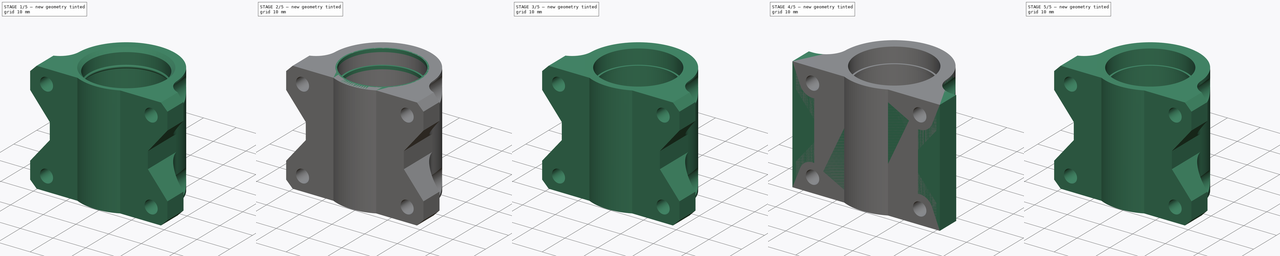
[diagram: build sequence overview — one tinted view per stage of 5, left to right]
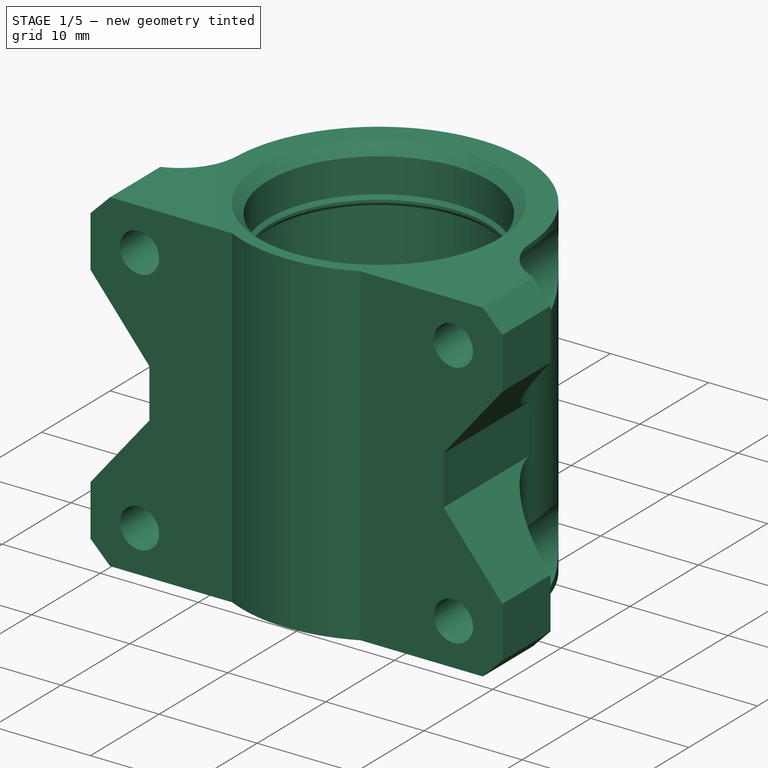
[diagram: stage 1 of 5 — iso view after this stage's code; geometry added in this stage tinted green]
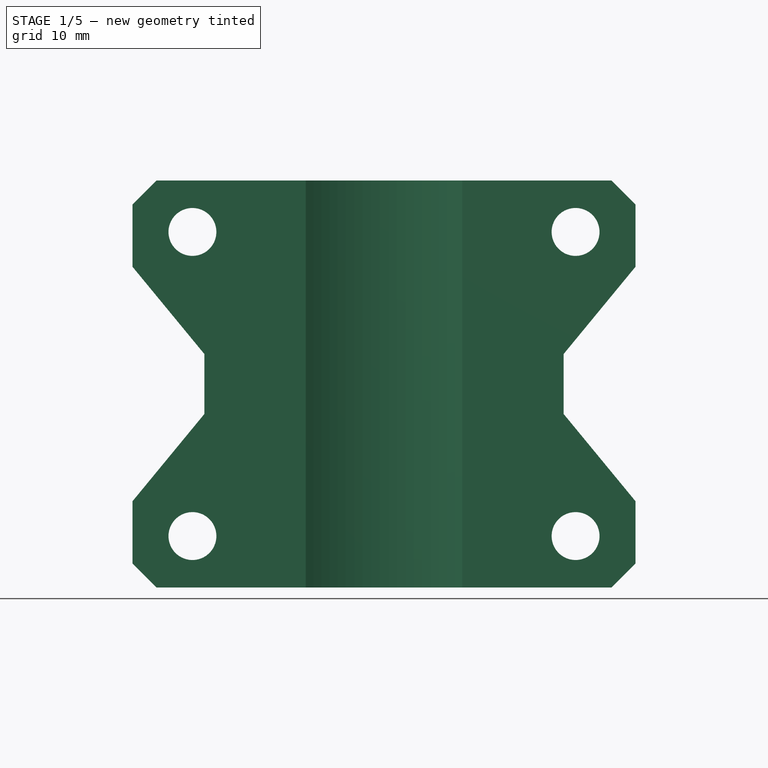
[diagram: stage 1 of 5 — front view after this stage's code; geometry added in this stage tinted green]
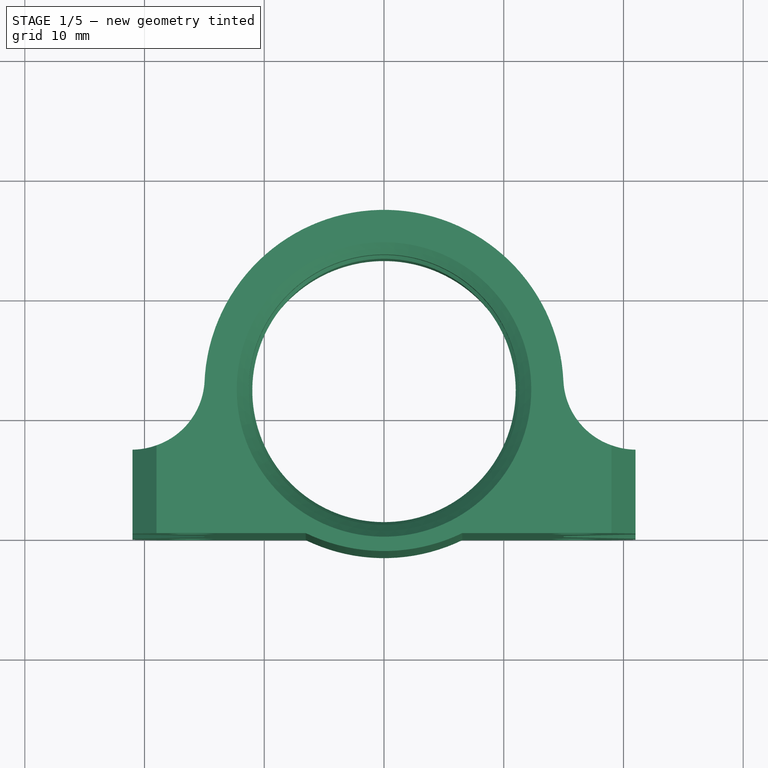
[diagram: stage 1 of 5 — top view after this stage's code; geometry added in this stage tinted green]
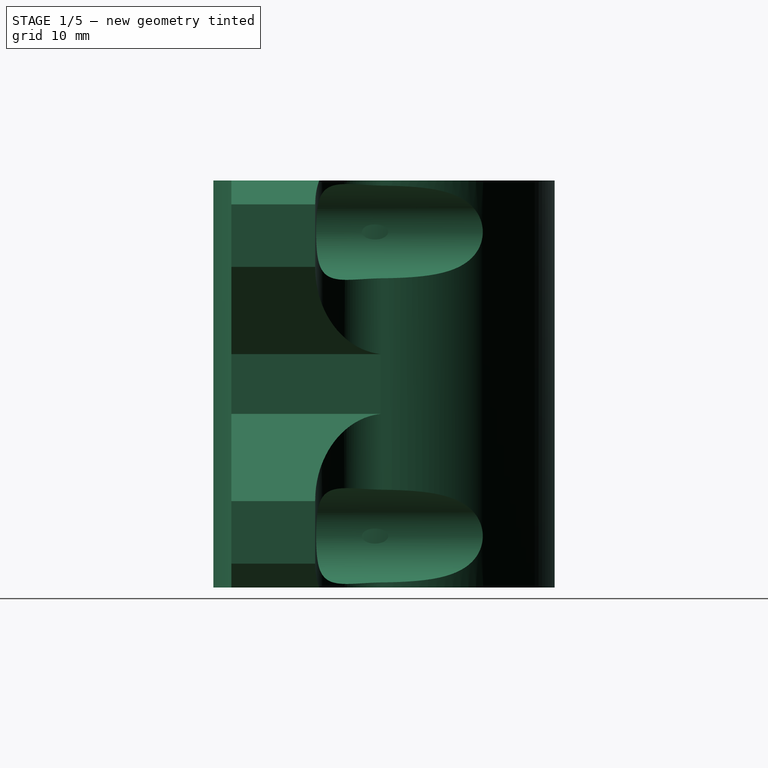
[diagram: stage 1 of 5 — right view after this stage's code; geometry added in this stage tinted green]
FCSTD DOCUMENT  (FreeCAD 0.16R5861 (Git))
Label: single_bearing_holder_12mm_v0.4
License: All rights reserved
LicenseURL: http://en.wikipedia.org/wiki/All_rights_reserved
objects: Sketcher::SketchObject×13, PartDesign::Pocket×7, PartDesign::Pad×6, PartDesign::Chamfer×3, Part::Feature×3, PartDesign::Fillet×2, PartDesign::LinearPattern×1
note: 48 computed .brp shape members not serialized (recipe doc carries the construction recipe); baked Part::Feature solids carry a one-line shape summary decoded from their .brp

FEATURE [Part::Feature] Pocket004002001  label="Pocket004003"
  shape: bbox 42 x 28.5 x 34 mm, 47 faces (baked)
FEATURE [PartDesign::Chamfer] Chamfer002
  Base = -> Pocket004002001 [Edge130,Edge61]
  Size = 1
FEATURE [PartDesign::Fillet] Fillet001
  Base = -> Chamfer002 [Edge133,Edge129]
  Radius = 0.49
FEATURE [Sketcher::SketchObject] Sketch012
  ExternalGeometry = -> [Fillet001]
  Placement = pos=(0,0,0) rot=(1,0,0;3.14159rad)
  Support = -> Fillet001 [Face7]
  sketch-geometry (1):
    g0: Circle CenterX=0 CenterY=-12 CenterZ=0 NormalX=0 NormalY=0 NormalZ=1 Radius=11
  constraints (2):
    c: Coincident(g0,g-3)
    c: Radius(g0) = 11
FEATURE [PartDesign::Pocket] Pocket004002002
  Length = 5
  Sketch = -> Sketch012
  Type = 1
FEATURE [PartDesign::Chamfer] Chamfer003
  Base = -> Pocket004002002 [Edge4,Edge8]
  Size = 0.3
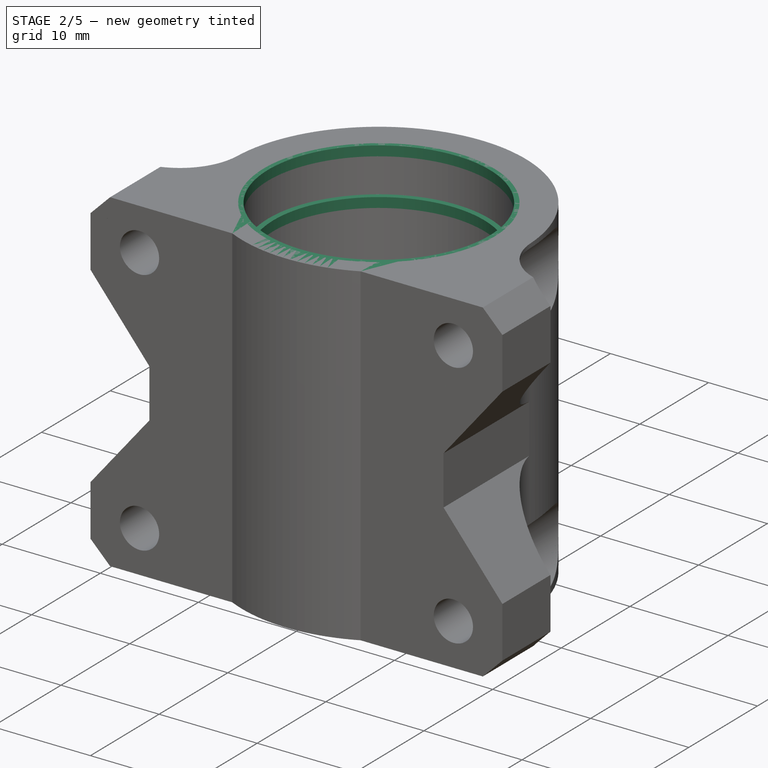
[diagram: stage 2 of 5 — iso view after this stage's code; geometry added in this stage tinted green]
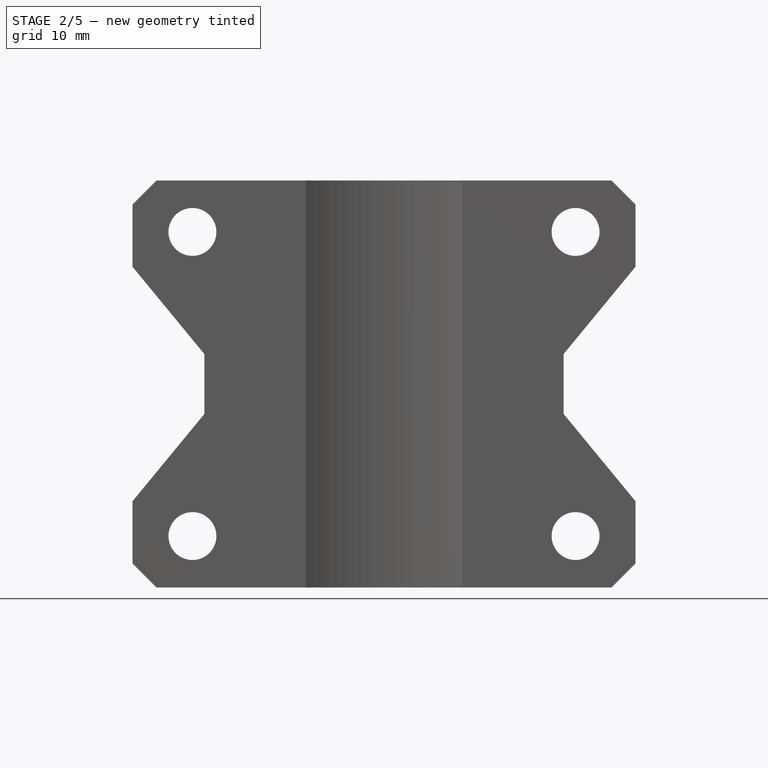
[diagram: stage 2 of 5 — front view after this stage's code; geometry added in this stage tinted green]
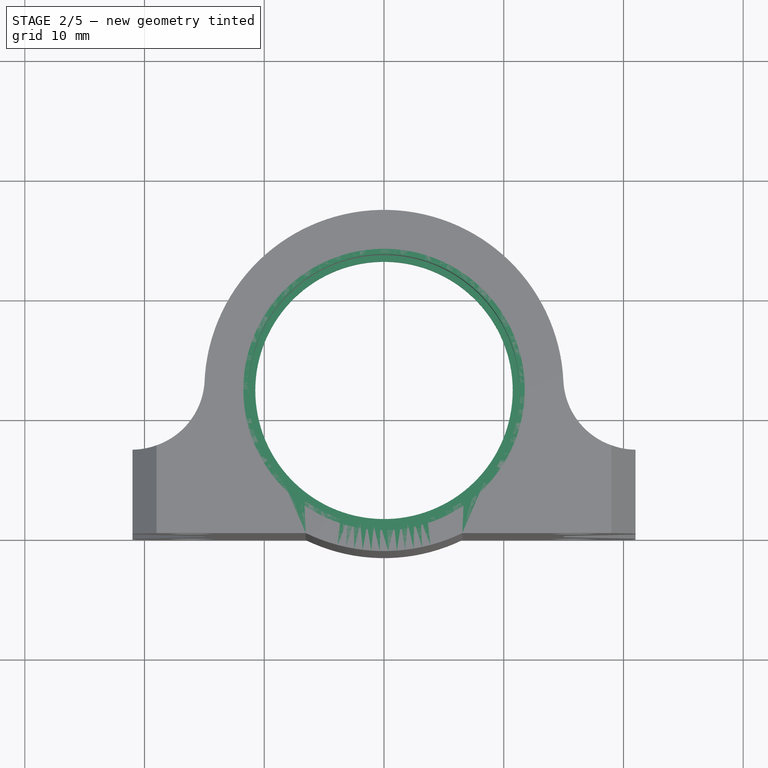
[diagram: stage 2 of 5 — top view after this stage's code; geometry added in this stage tinted green]
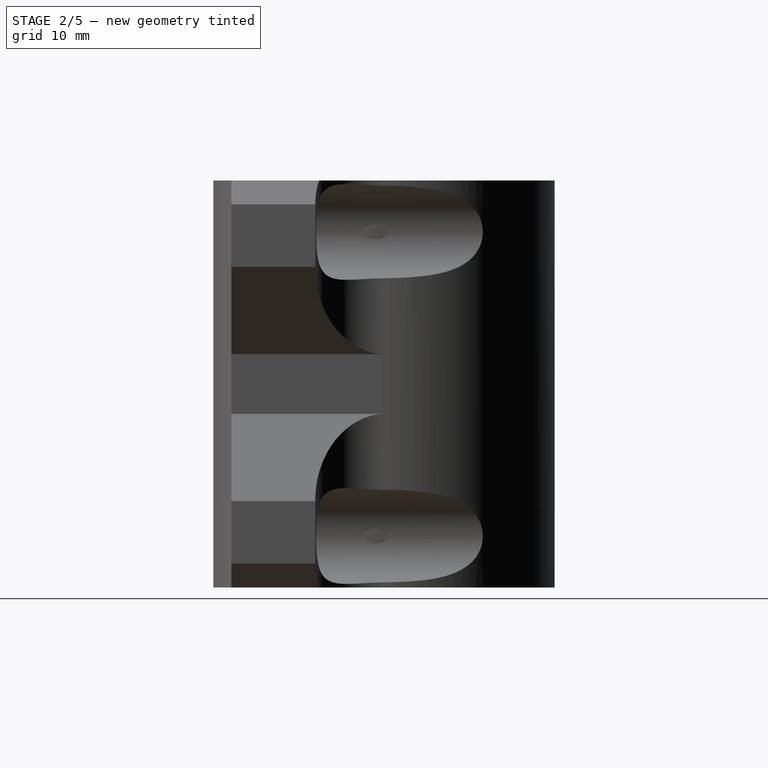
[diagram: stage 2 of 5 — right view after this stage's code; geometry added in this stage tinted green]
FEATURE [Part::Feature] Chamfer001
  shape: bbox 42 x 28.5 x 34 mm, 39 faces (baked)
FEATURE [Sketcher::SketchObject] Sketch006
  ExternalGeometry = -> [Chamfer001]
  Placement = pos=(0,0,0) rot=(1,0,0;1.5708rad)
  Support = -> Chamfer001 [Face38]
  sketch-geometry (4):
    g0: Circle CenterX=-16 CenterY=29.7 CenterZ=0 NormalX=0 NormalY=0 NormalZ=1 Radius=4
    g1: Circle CenterX=16 CenterY=29.7 CenterZ=0 NormalX=0 NormalY=0 NormalZ=1 Radius=4
    g2: Circle CenterX=16 CenterY=4.3 CenterZ=0 NormalX=0 NormalY=0 NormalZ=1 Radius=4
    g3: Circle CenterX=-16 CenterY=4.3 CenterZ=0 NormalX=0 NormalY=0 NormalZ=1 Radius=4
  constraints (8):
    c: Coincident(g0,g-3)
    c: Coincident(g1,g-4)
    c: Coincident(g2,g-5)
    c: Coincident(g3,g-6)
    c: Equal(g3,g0)
    c: Equal(g0,g1)
    c: Equal(g1,g2)
    c: Radius(g1) = 4
FEATURE [PartDesign::Pocket] Pocket003
  Length = 5
  Sketch = -> Sketch006
  Type = 1
FEATURE [Part::Feature] Pocket004001  label="Pocket005"
  shape: bbox 42 x 28.5 x 34 mm, 43 faces (baked)
FEATURE [Sketcher::SketchObject] Sketch010
  ExternalGeometry = -> [Pocket004001]
  Placement = pos=(0,0,34) rot=(0,0,1;0rad)
  Support = -> Pocket004001 [Face36]
  sketch-geometry (2):
    g0: Circle CenterX=0 CenterY=12 CenterZ=0 NormalX=0 NormalY=0 NormalZ=1 Radius=10.75
    g1: Circle CenterX=0 CenterY=12 CenterZ=0 NormalX=0 NormalY=0 NormalZ=1 Radius=11.75
  constraints (4):
    c: Coincident(g0,g-3)
    c: Coincident(g1,g0)
    c: Radius(g1) = 11.75
    c: Radius(g0) = 10.75
FEATURE [PartDesign::Pad] Pad005
  Length = 1
  Length2 = 100
  Reversed = true
  Sketch = -> Sketch010
  Type = 0
FEATURE [PartDesign::LinearPattern] LinearPattern
  Direction = -> Pad005 [Edge14]
  Length = 4.5
  Occurrences = 2
  Originals = -> [Pad005]
  Reversed = true
FEATURE [Sketcher::SketchObject] Sketch011
  ExternalGeometry = -> [LinearPattern]
  Placement = pos=(0,0,34) rot=(0,0,1;0rad)
  Support = -> LinearPattern [Face10]
  sketch-geometry (1):
    g0: Circle CenterX=0 CenterY=12 CenterZ=0 NormalX=0 NormalY=0 NormalZ=1 Radius=11.3
  constraints (2):
    c: Coincident(g0,g-3)
    c: Equal(g-3,g0)
FEATURE [PartDesign::Pocket] Pocket004002
  Length = 3
  Sketch = -> Sketch011
  Type = 0
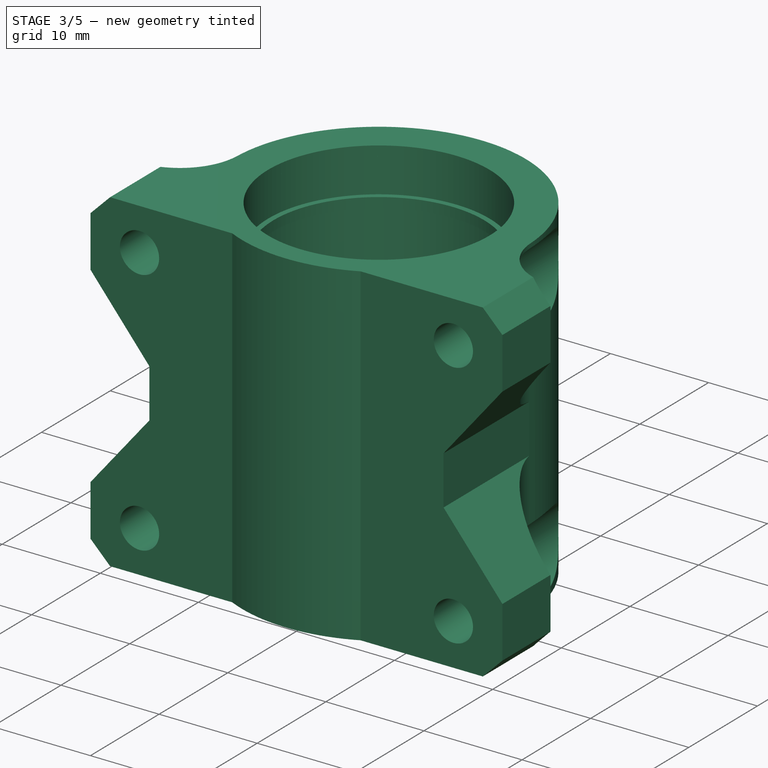
[diagram: stage 3 of 5 — iso view after this stage's code; geometry added in this stage tinted green]
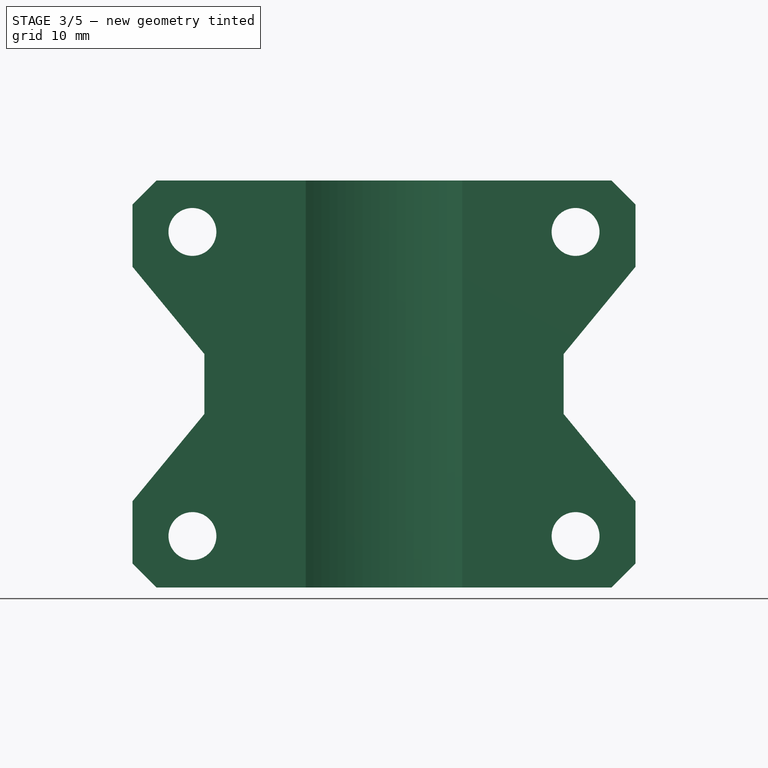
[diagram: stage 3 of 5 — front view after this stage's code; geometry added in this stage tinted green]
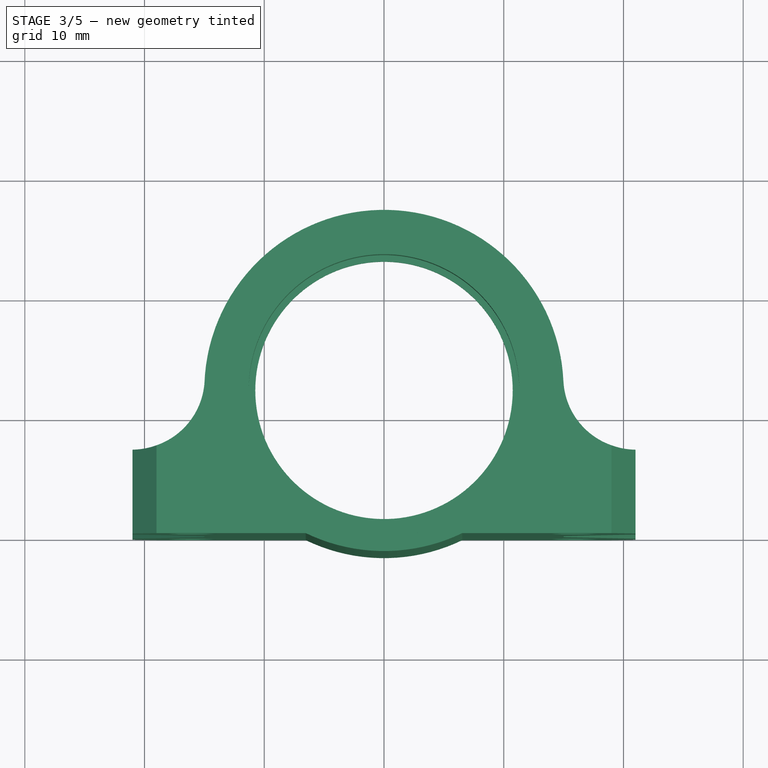
[diagram: stage 3 of 5 — top view after this stage's code; geometry added in this stage tinted green]
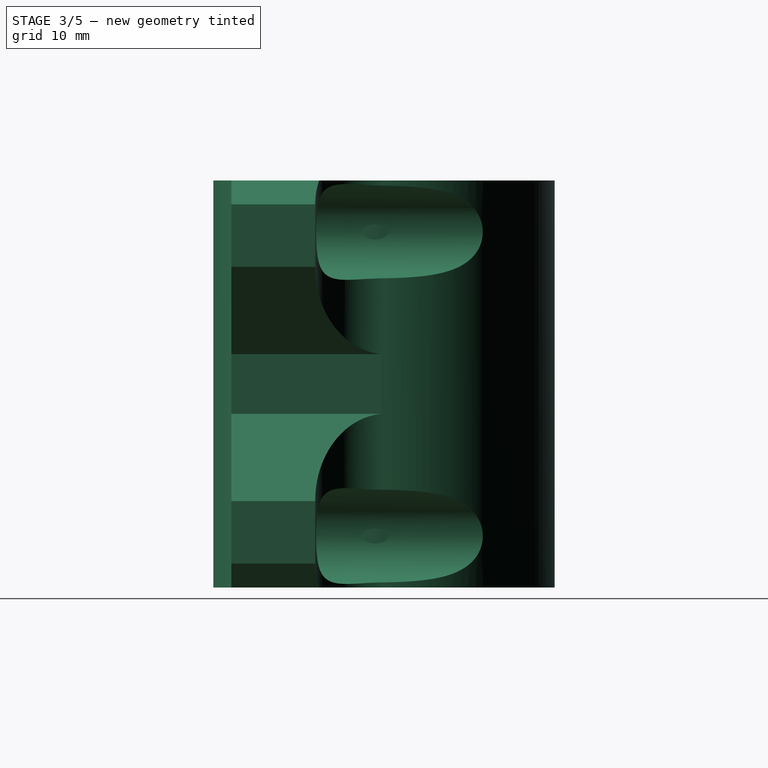
[diagram: stage 3 of 5 — right view after this stage's code; geometry added in this stage tinted green]
FEATURE [Sketcher::SketchObject] Sketch007
  ExternalGeometry = -> [Pocket003]
  Placement = pos=(0,0,0) rot=(1,0,0;1.5708rad)
  Support = -> Pocket003 [Face19]
  sketch-geometry (8):
    g0: Circle CenterX=-16 CenterY=4.3 CenterZ=0 NormalX=0 NormalY=0 NormalZ=1 Radius=4
    g1: Circle CenterX=-16 CenterY=29.7 CenterZ=0 NormalX=0 NormalY=0 NormalZ=1 Radius=4
    g2: Circle CenterX=16 CenterY=29.7 CenterZ=0 NormalX=0 NormalY=0 NormalZ=1 Radius=4
    g3: Circle CenterX=16 CenterY=4.3 CenterZ=0 NormalX=0 NormalY=0 NormalZ=1 Radius=4
    g4: Circle CenterX=-16 CenterY=29.7 CenterZ=0 NormalX=0 NormalY=0 NormalZ=1 Radius=2
    g5: Circle CenterX=16 CenterY=29.7 CenterZ=0 NormalX=0 NormalY=0 NormalZ=1 Radius=2
    g6: Circle CenterX=16 CenterY=4.3 CenterZ=0 NormalX=0 NormalY=0 NormalZ=1 Radius=2
    g7: Circle CenterX=-16 CenterY=4.3 CenterZ=0 NormalX=0 NormalY=0 NormalZ=1 Radius=2
  constraints (16):
    c: Coincident(g0,g-6)
    c: Coincident(g1,g-3)
    c: Coincident(g2,g-4)
    c: Coincident(g3,g-5)
    c: Equal(g3,g-5)
    c: Equal(g-5,g2)
    c: Equal(g2,g1)
    c: Equal(g1,g0)
    c: Coincident(g4,g1)
    c: Coincident(g5,g2)
    c: Coincident(g6,g3)
    c: Coincident(g7,g0)
    c: Equal(g7,g4)
    c: Equal(g4,g5)
    c: Equal(g5,g6)
    c: Radius(g5) = 2
FEATURE [PartDesign::Pad] Pad003
  Length = 7
  Length2 = 100
  Reversed = true
  Sketch = -> Sketch007
  Type = 0
FEATURE [Sketcher::SketchObject] Sketch008
  ExternalGeometry = -> [Pad003]
  Placement = pos=(0,0,0) rot=(1,0,0;3.14159rad)
  Support = -> Pad003 [Face14]
  sketch-geometry (2):
    g0: Circle CenterX=0 CenterY=-12 CenterZ=0 NormalX=0 NormalY=0 NormalZ=1 Radius=12.05
    g1: Circle CenterX=0 CenterY=-12 CenterZ=0 NormalX=0 NormalY=0 NormalZ=1 Radius=11.1
  constraints (4):
    c: Coincident(g0,g-3)
    c: Coincident(g1,g0)
    c: Radius(g0) = 12.05
    c: Radius(g1) = 11.1
FEATURE [PartDesign::Pad] Pad004
  Length = 34
  Length2 = 100
  Reversed = true
  Sketch = -> Sketch008
  Type = 0
FEATURE [Sketcher::SketchObject] Sketch009
  ExternalGeometry = -> [Pad004]
  Placement = pos=(0,0,34) rot=(0,0,1;0rad)
  Support = -> Pad004 [Face10]
  sketch-geometry (1):
    g0: Circle CenterX=0 CenterY=12 CenterZ=0 NormalX=0 NormalY=0 NormalZ=1 Radius=11.3
  constraints (2):
    c: Coincident(g0,g-3)
    c: Radius(g0) = 11.3
FEATURE [PartDesign::Pocket] Pocket004
  Length = 5
  Sketch = -> Sketch009
  Type = 1
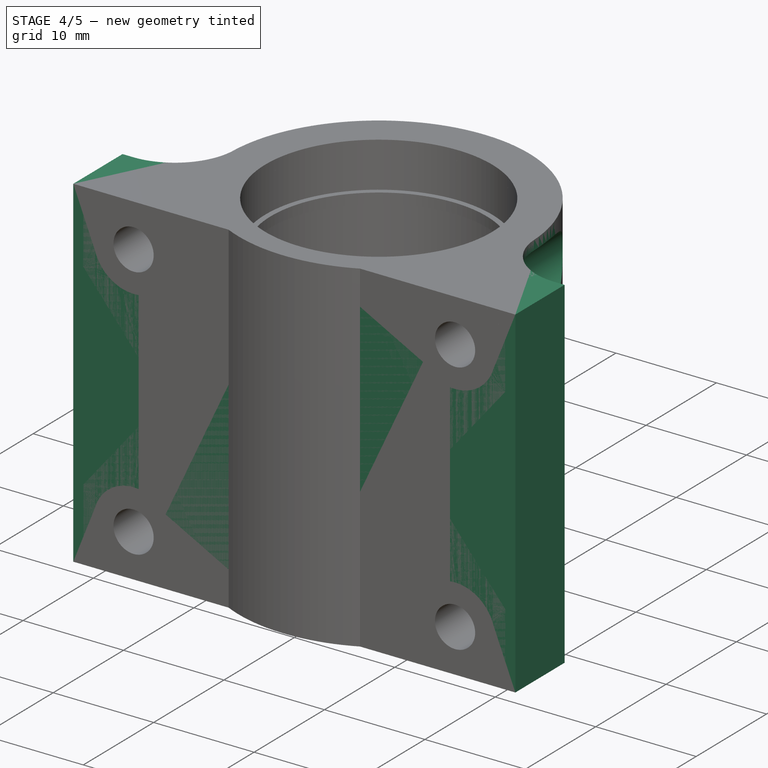
[diagram: stage 4 of 5 — iso view after this stage's code; geometry added in this stage tinted green]
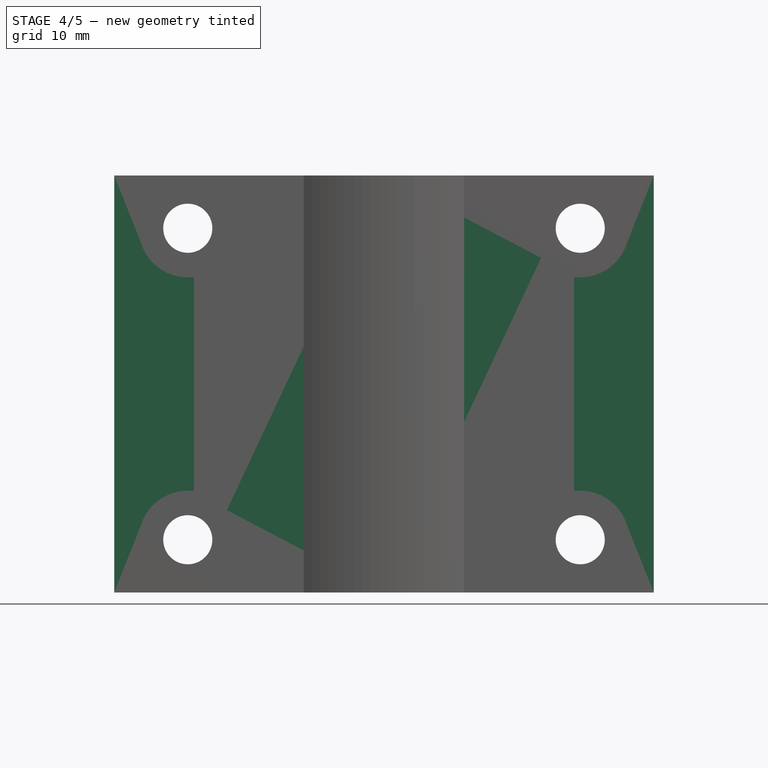
[diagram: stage 4 of 5 — front view after this stage's code; geometry added in this stage tinted green]
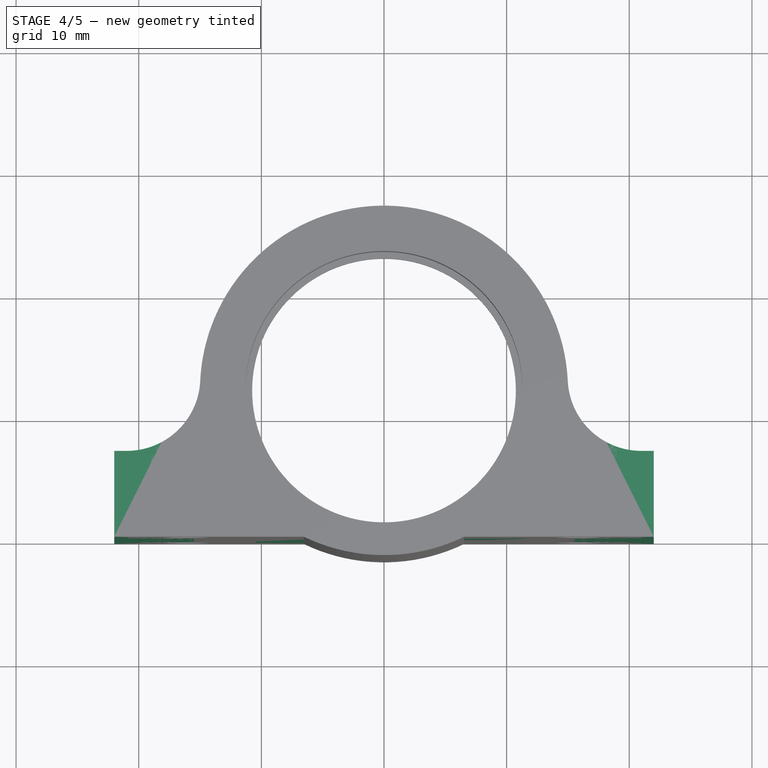
[diagram: stage 4 of 5 — top view after this stage's code; geometry added in this stage tinted green]
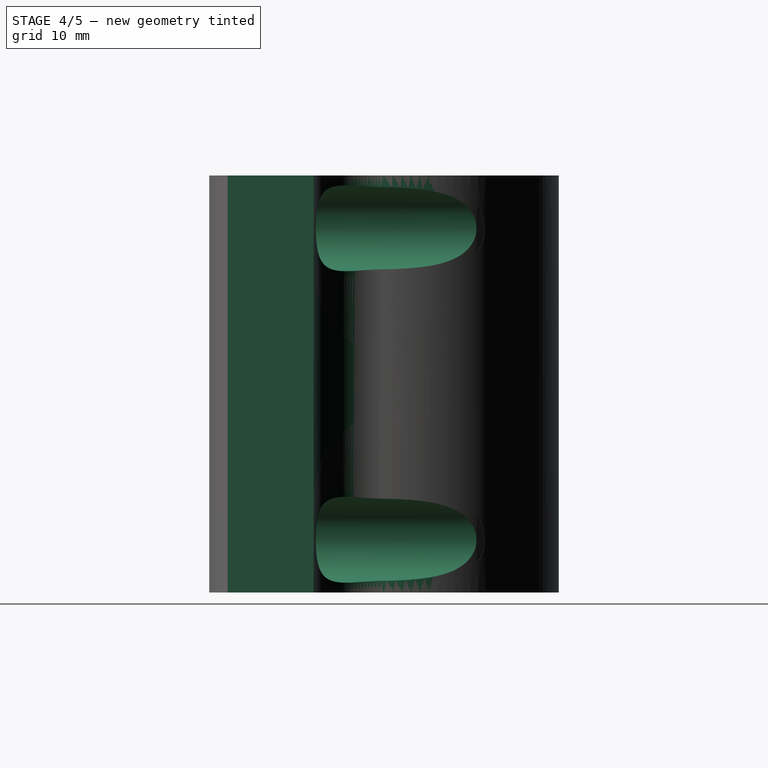
[diagram: stage 4 of 5 — right view after this stage's code; geometry added in this stage tinted green]
FEATURE [Sketcher::SketchObject] Sketch
  sketch-geometry (8):
    g0: Circle CenterX=0 CenterY=12 CenterZ=0 NormalX=0 NormalY=0 NormalZ=1 Radius=11.4
    g1: LineSegment StartX=-22 StartY=0 StartZ=0 EndX=0 EndY=0 EndZ=0
    g2: LineSegment StartX=0 StartY=0 StartZ=0 EndX=22 EndY=0 EndZ=0
    g3: LineSegment StartX=22 StartY=0 StartZ=0 EndX=22 EndY=7 EndZ=0
    g4: LineSegment StartX=22 StartY=7 StartZ=0 EndX=14.1421 EndY=7 EndZ=0
    g5: LineSegment StartX=-22 StartY=0 StartZ=0 EndX=-22 EndY=7 EndZ=0
    g6: LineSegment StartX=-22 StartY=7 StartZ=0 EndX=-14.1421 EndY=7 EndZ=0
    g7: ArcOfCircle CenterX=0 CenterY=12 CenterZ=0 NormalX=0 NormalY=0 NormalZ=1 Radius=15 StartAngle=5.94335 EndAngle=9.76461
  constraints (24):
    c: PointOnObject(g0,g-2)
    c: Radius(g0) = 11.4
    c: DistanceY(g-1,g0) = 12
    c: PointOnObject(g1,g-1)
    c: Coincident(g1,g-1)
    c: Coincident(g1,g2)
    c: PointOnObject(g2,g-1)
    c: Coincident(g2,g3)
    c: Vertical(g3)
    c: Coincident(g3,g4)
    c: Horizontal(g4)
    c: Coincident(g1,g5)
    c: Vertical(g5)
    c: Coincident(g5,g6)
    c: Equal(g5,g3)
    c: Horizontal(g6)
    c: Equal(g6,g4)
    c: Equal(g1,g2)
    c: DistanceX(g2,g1) = -44
    c: DistanceY(g5) = 7
    c: Coincident(g7,g0)
    c: Coincident(g7,g4)
    c: Coincident(g7,g6)
    c: Radius(g7) = 15
FEATURE [PartDesign::Pad] Pad
  Length = 34
  Length2 = 100
  Sketch = -> Sketch
  Type = 0
FEATURE [PartDesign::Fillet] Fillet
  Base = -> Pad [Edge14,Edge11]
  Radius = 6
FEATURE [Sketcher::SketchObject] Sketch001
  ExternalGeometry = -> [Fillet]
  Placement = pos=(0,0,0) rot=(1,0,0;1.5708rad)
  Support = -> Fillet [Face7]
  sketch-geometry (16):
    g0: LineSegment [constr] StartX=-16 StartY=29.7 StartZ=0 EndX=16 EndY=29.7 EndZ=0
    g1: LineSegment [constr] StartX=16 StartY=29.7 StartZ=0 EndX=16 EndY=4.3 EndZ=0
    g2: LineSegment [constr] StartX=16 StartY=4.3 StartZ=0 EndX=-16 EndY=4.3 EndZ=0
    g3: LineSegment [constr] StartX=-16 StartY=4.3 StartZ=0 EndX=-16 EndY=29.7 EndZ=0
    g4: LineSegment [constr] StartX=-16 StartY=4.3 StartZ=0 EndX=-22 EndY=4.3 EndZ=0
    g5: LineSegment [constr] StartX=-22 StartY=4.3 StartZ=0 EndX=-22 EndY=0 EndZ=0
    g6: LineSegment [constr] StartX=-22 StartY=0 StartZ=0 EndX=-16 EndY=0 EndZ=0
    g7: LineSegment [constr] StartX=-16 StartY=0 StartZ=0 EndX=-16 EndY=4.3 EndZ=0
    g8: LineSegment [constr] StartX=16 StartY=29.7 StartZ=0 EndX=22 EndY=29.7 EndZ=0
    g9: LineSegment [constr] StartX=22 StartY=29.7 StartZ=0 EndX=22 EndY=34 EndZ=0
    g10: LineSegment [constr] StartX=22 StartY=34 StartZ=0 EndX=16 EndY=34 EndZ=0
    g11: LineSegment [constr] StartX=16 StartY=34 StartZ=0 EndX=16 EndY=29.7 EndZ=0
    g12: Circle CenterX=-16 CenterY=4.3 CenterZ=0 NormalX=0 NormalY=0 NormalZ=1 Radius=3.5
    g13: Circle CenterX=-16 CenterY=29.7 CenterZ=0 NormalX=0 NormalY=0 NormalZ=1 Radius=3.5
    g14: Circle CenterX=16 CenterY=29.7 CenterZ=0 NormalX=0 NormalY=0 NormalZ=1 Radius=3.5
    g15: Circle CenterX=16 CenterY=4.3 CenterZ=0 NormalX=0 NormalY=0 NormalZ=1 Radius=3.5
  constraints (40):
    c: Coincident(g0,g1)
    c: Coincident(g1,g2)
    c: Coincident(g2,g3)
    c: Coincident(g3,g0)
    c: Horizontal(g0)
    c: Horizontal(g2)
    c: Vertical(g1)
    c: Vertical(g3)
    c: Coincident(g4,g5)
    c: Coincident(g5,g6)
    c: Coincident(g6,g7)
    c: Coincident(g7,g4)
    c: Horizontal(g4)
    c: Horizontal(g6)
    c: Vertical(g5)
    c: Vertical(g7)
    c: Coincident(g4,g2)
    c: Coincident(g5,g-4)
    c: Coincident(g8,g9)
    c: Coincident(g9,g10)
    c: Coincident(g10,g11)
    c: Coincident(g11,g8)
    c: Horizontal(g8)
    c: Horizontal(g10)
    c: Vertical(g9)
    c: Vertical(g11)
    c: Coincident(g8,g0)
    c: Coincident(g9,g-5)
    c: Equal(g11,g7)
    c: Equal(g4,g8)
    c: DistanceY(g1) = -25.4
    c: DistanceX(g0) = 32
    c: Coincident(g12,g2)
    c: Coincident(g13,g0)
    c: Coincident(g14,g0)
    c: Coincident(g15,g1)
    c: Equal(g15,g12)
    c: Equal(g12,g13)
    c: Equal(g13,g14)
    c: Radius(g14) = 3.5
FEATURE [PartDesign::Pocket] Pocket
  Length = 5
  Sketch = -> Sketch001
  Type = 1
FEATURE [Sketcher::SketchObject] Sketch002
  ExternalGeometry = -> [Pocket]
  Placement = pos=(0,0,0) rot=(1,0,0;1.5708rad)
  Support = -> Pocket [Face9]
  sketch-geometry (8):
    g0: Circle CenterX=-16 CenterY=29.7 CenterZ=0 NormalX=0 NormalY=0 NormalZ=1 Radius=2
    g1: Circle CenterX=-16 CenterY=29.7 CenterZ=0 NormalX=0 NormalY=0 NormalZ=1 Radius=4
    g2: Circle CenterX=16 CenterY=29.7 CenterZ=0 NormalX=0 NormalY=0 NormalZ=1 Radius=2
    g3: Circle CenterX=16 CenterY=29.7 CenterZ=0 NormalX=0 NormalY=0 NormalZ=1 Radius=4
    g4: Circle CenterX=-16 CenterY=4.3 CenterZ=0 NormalX=0 NormalY=0 NormalZ=1 Radius=2
    g5: Circle CenterX=-16 CenterY=4.3 CenterZ=0 NormalX=0 NormalY=0 NormalZ=1 Radius=4
    g6: Circle CenterX=16 CenterY=4.3 CenterZ=0 NormalX=0 NormalY=0 NormalZ=1 Radius=2
    g7: Circle CenterX=16 CenterY=4.3 CenterZ=0 NormalX=0 NormalY=0 NormalZ=1 Radius=4
  constraints (16):
    c: Coincident(g0,g-3)
    c: Coincident(g1,g0)
    c: Coincident(g2,g-4)
    c: Coincident(g3,g2)
    c: Coincident(g4,g-6)
    c: Coincident(g5,g4)
    c: Coincident(g6,g-5)
    c: Coincident(g7,g6)
    c: Radius(g1) = 4
    c: Equal(g1,g3)
    c: Equal(g1,g5)
    c: Equal(g1,g7)
    c: Radius(g0) = 2
    c: Equal(g0,g2)
    c: Equal(g0,g6)
    c: Equal(g0,g4)
FEATURE [PartDesign::Pad] Pad001
  Length = 7
  Length2 = 100
  Reversed = true
  Sketch = -> Sketch002
  Type = 0
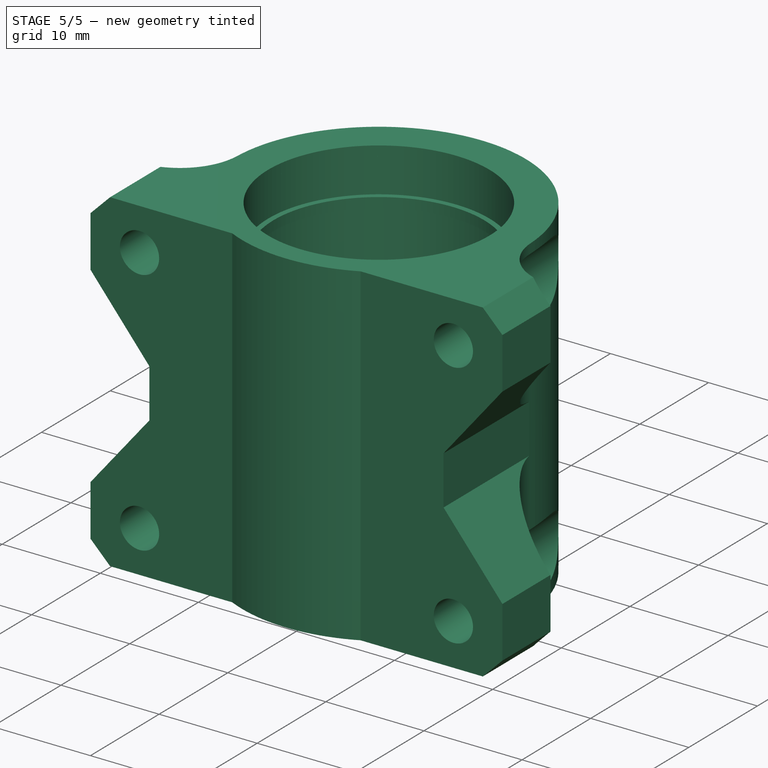
[diagram: stage 5 of 5 — iso view after this stage's code; geometry added in this stage tinted green]
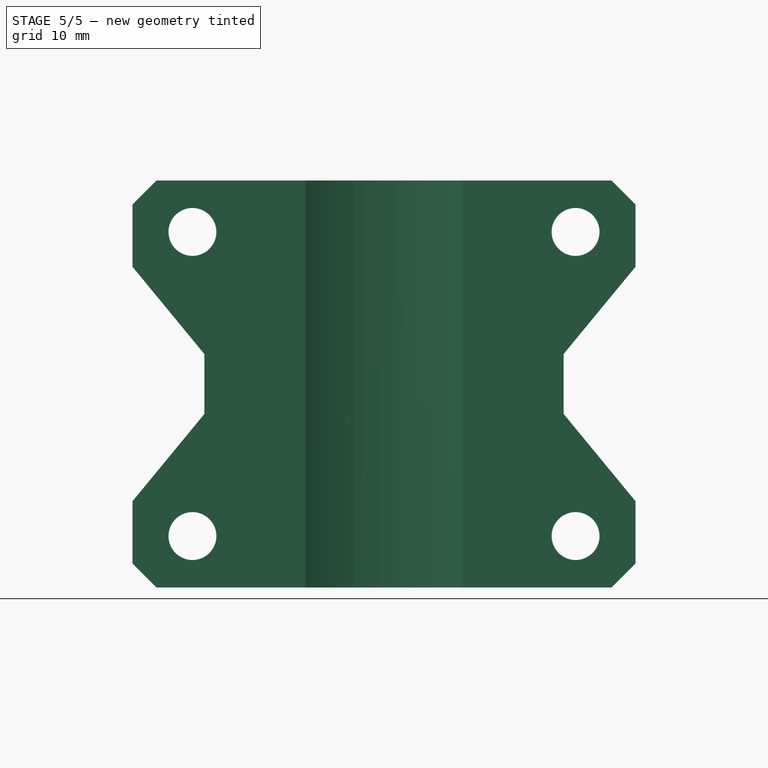
[diagram: stage 5 of 5 — front view after this stage's code; geometry added in this stage tinted green]
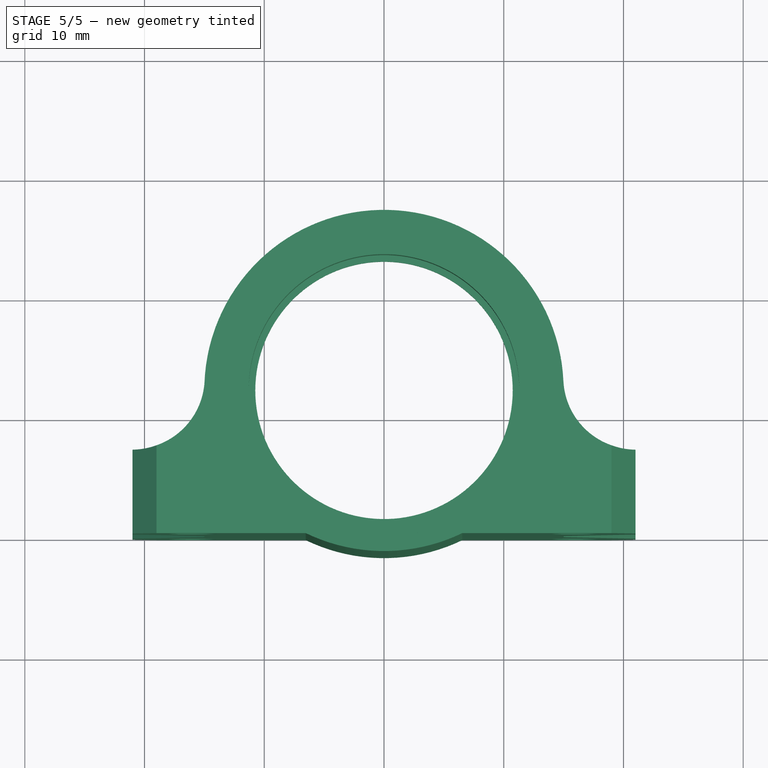
[diagram: stage 5 of 5 — top view after this stage's code; geometry added in this stage tinted green]
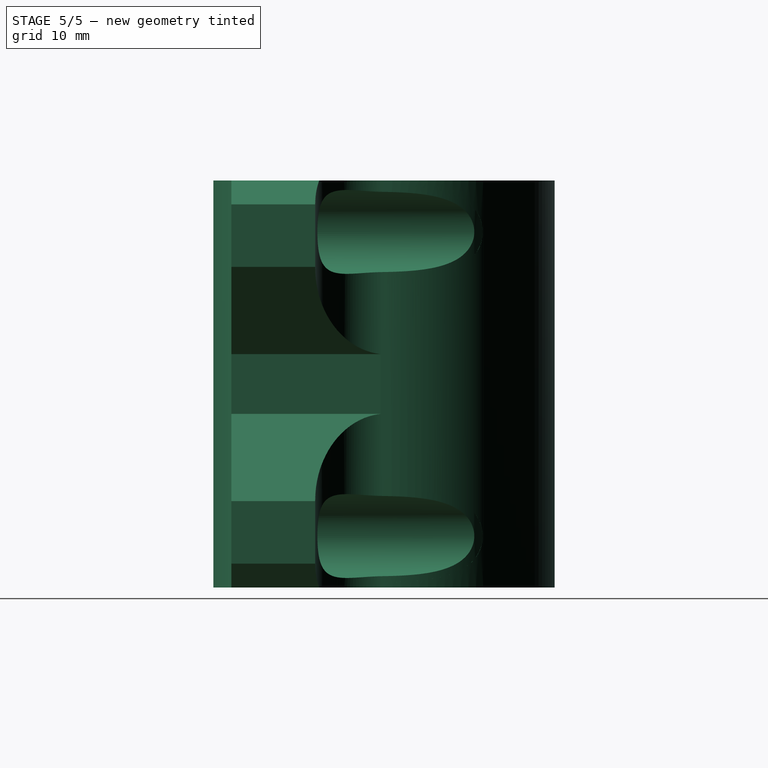
[diagram: stage 5 of 5 — right view after this stage's code; geometry added in this stage tinted green]
FEATURE [Sketcher::SketchObject] Sketch003
  ExternalGeometry = -> [Pad001]
  Placement = pos=(0,0,0) rot=(1,0,0;1.5708rad)
  Support = -> Pad001 [Face7]
  sketch-geometry (8):
    g0: LineSegment StartX=-22 StartY=28 StartZ=0 EndX=-15 EndY=19.5 EndZ=0
    g1: LineSegment StartX=-15 StartY=19.5 StartZ=0 EndX=-15 EndY=14.5 EndZ=0
    g2: LineSegment StartX=-15 StartY=14.5 StartZ=0 EndX=-22 EndY=6 EndZ=0
    g3: LineSegment StartX=-22 StartY=6 StartZ=0 EndX=-22 EndY=28 EndZ=0
    g4: LineSegment StartX=22 StartY=28 StartZ=0 EndX=15 EndY=19.5 EndZ=0
    g5: LineSegment StartX=15 StartY=19.5 StartZ=0 EndX=15 EndY=14.5 EndZ=0
    g6: LineSegment StartX=15 StartY=14.5 StartZ=0 EndX=22 EndY=6 EndZ=0
    g7: LineSegment StartX=22 StartY=6 StartZ=0 EndX=22 EndY=28 EndZ=0
  constraints (24):
    c: PointOnObject(g0,g-3)
    c: Coincident(g0,g1)
    c: Vertical(g1)
    c: Coincident(g1,g2)
    c: PointOnObject(g2,g-3)
    c: Coincident(g2,g3)
    c: Coincident(g3,g0)
    c: PointOnObject(g4,g-4)
    c: Coincident(g4,g5)
    c: Vertical(g5)
    c: Coincident(g5,g6)
    c: PointOnObject(g6,g-4)
    c: Coincident(g6,g7)
    c: Coincident(g7,g4)
    c: Equal(g1,g5)
    c: Equal(g0,g6)
    c: Equal(g6,g4)
    c: Equal(g4,g2)
    c: DistanceX(g0,g0) = -7
    c: DistanceY(g0,g-3) = 6
    c: DistanceY(g2,g-3) = -6
    c: DistanceY(g6,g-4) = -6
    c: DistanceY(g4,g-4) = 6
    c: DistanceY(g5) = -5
FEATURE [PartDesign::Pocket] Pocket001
  Length = 5
  Sketch = -> Sketch003
  Type = 1
FEATURE [Sketcher::SketchObject] Sketch004
  ExternalGeometry = -> [Pocket001]
  Placement = pos=(0,0,0) rot=(1,0,0;3.14159rad)
  Support = -> Pocket001 [Face5]
  sketch-geometry (3):
    g0: ArcOfCircle CenterX=0 CenterY=-13.5 CenterZ=0 NormalX=0 NormalY=0 NormalZ=1 Radius=15 StartAngle=1.11977 EndAngle=2.02182
    g1: LineSegment [constr] StartX=0 StartY=0 StartZ=0 EndX=0 EndY=1.5 EndZ=0
    g2: LineSegment StartX=-6.53835 StartY=0 StartZ=0 EndX=6.53835 EndY=0 EndZ=0
  constraints (10):
    c: PointOnObject(g0,g-1)
    c: PointOnObject(g0,g-1)
    c: Radius(g0) = 15
    c: Coincident(g1,g-1)
    c: PointOnObject(g1,g0)
    c: Vertical(g1)
    c: DistanceY(g1) = 1.5
    c: PointOnObject(g0,g-2)
    c: Coincident(g0,g2)
    c: Coincident(g2,g0)
FEATURE [PartDesign::Pad] Pad002
  Length = 34
  Length2 = 100
  Reversed = true
  Sketch = -> Sketch004
  Type = 0
FEATURE [Sketcher::SketchObject] Sketch005
  ExternalGeometry = -> [Pad002]
  Placement = pos=(0,0,0) rot=(1,0,0;1.5708rad)
  Support = -> Pad002 [Face13]
  sketch-geometry (8):
    g0: LineSegment StartX=-22 StartY=34 StartZ=0 EndX=-21 EndY=34 EndZ=0
    g1: LineSegment StartX=-21 StartY=34 StartZ=0 EndX=-21 EndY=0 EndZ=0
    g2: LineSegment StartX=-21 StartY=0 StartZ=0 EndX=-22 EndY=0 EndZ=0
    g3: LineSegment StartX=-22 StartY=0 StartZ=0 EndX=-22 EndY=34 EndZ=0
    g4: LineSegment StartX=22 StartY=34 StartZ=0 EndX=21 EndY=34 EndZ=0
    g5: LineSegment StartX=21 StartY=34 StartZ=0 EndX=21 EndY=0 EndZ=0
    g6: LineSegment StartX=21 StartY=0 StartZ=0 EndX=22 EndY=0 EndZ=0
    g7: LineSegment StartX=22 StartY=0 StartZ=0 EndX=22 EndY=34 EndZ=0
  constraints (22):
    c: Coincident(g0,g1)
    c: Coincident(g1,g2)
    c: Coincident(g2,g3)
    c: Coincident(g3,g0)
    c: Horizontal(g0)
    c: Horizontal(g2)
    c: Vertical(g1)
    c: Vertical(g3)
    c: Coincident(g0,g-3)
    c: Coincident(g4,g5)
    c: Coincident(g5,g6)
    c: Coincident(g6,g7)
    c: Coincident(g7,g4)
    c: Horizontal(g4)
    c: Horizontal(g6)
    c: Vertical(g5)
    c: Vertical(g7)
    c: Coincident(g4,g-4)
    c: PointOnObject(g5,g-1)
    c: Equal(g2,g6)
    c: Equal(g1,g7)
    c: DistanceX(g0,g0) = -1
FEATURE [PartDesign::Pocket] Pocket002
  Length = 5
  Sketch = -> Sketch005
  Type = 1
FEATURE [PartDesign::Chamfer] Chamfer
  Base = -> Pocket002 [Edge42,Edge47,Edge26,Edge22]
  Size = 2
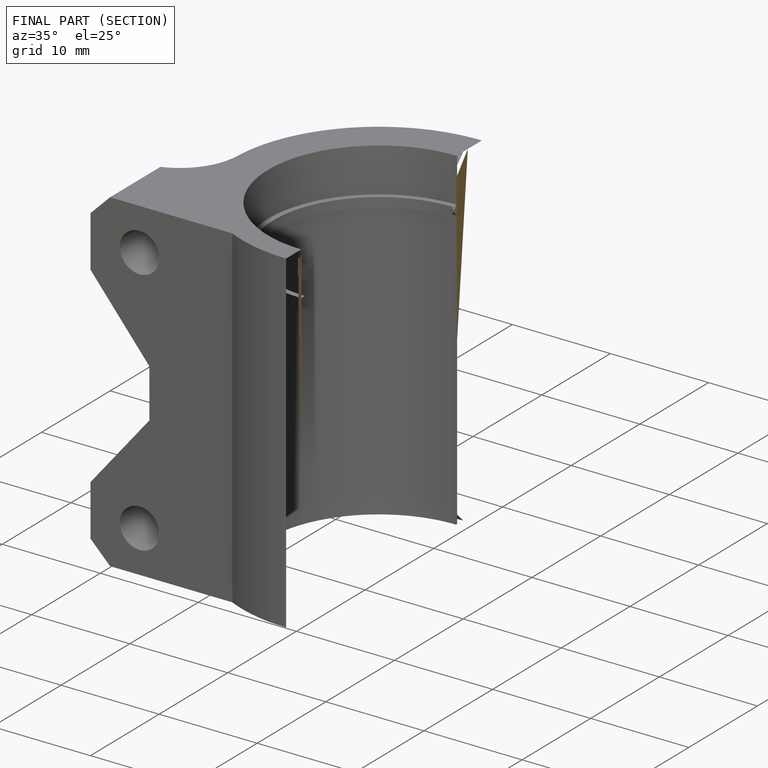
[diagram: finished part — half-section view (interior)]
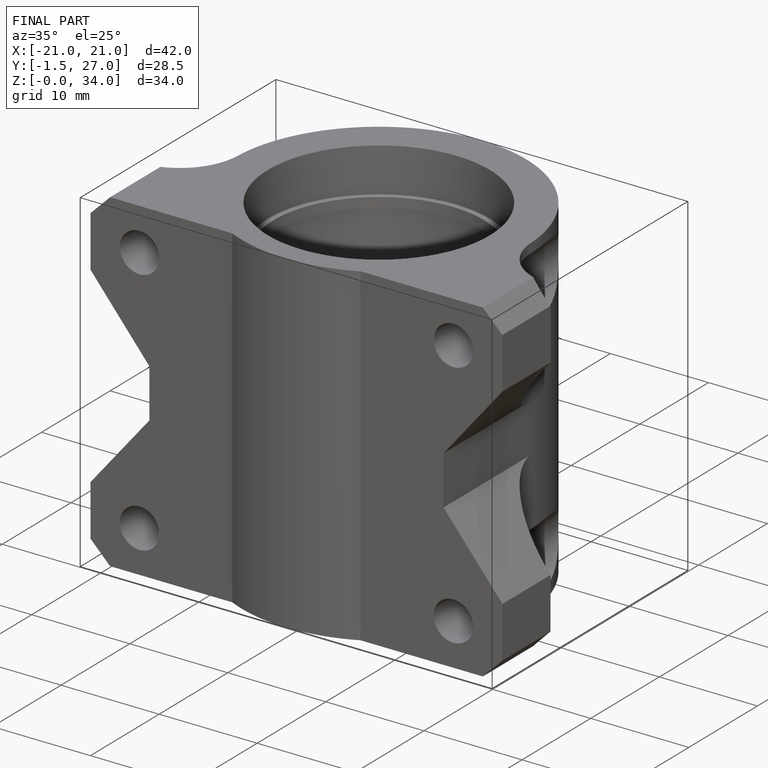
[diagram: finished part — iso view with bounding-box wireframe]
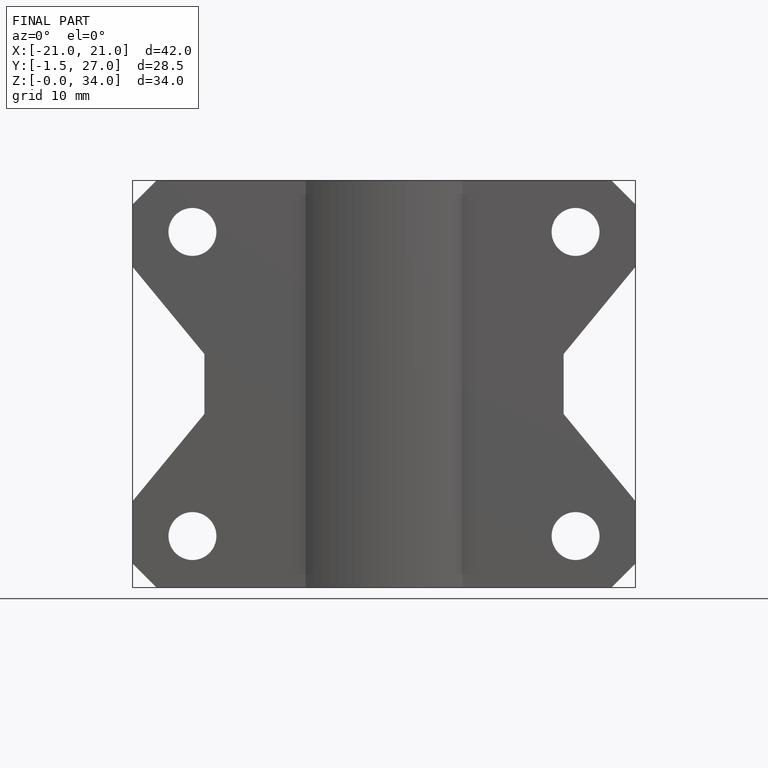
[diagram: finished part — front view with bounding-box wireframe]
